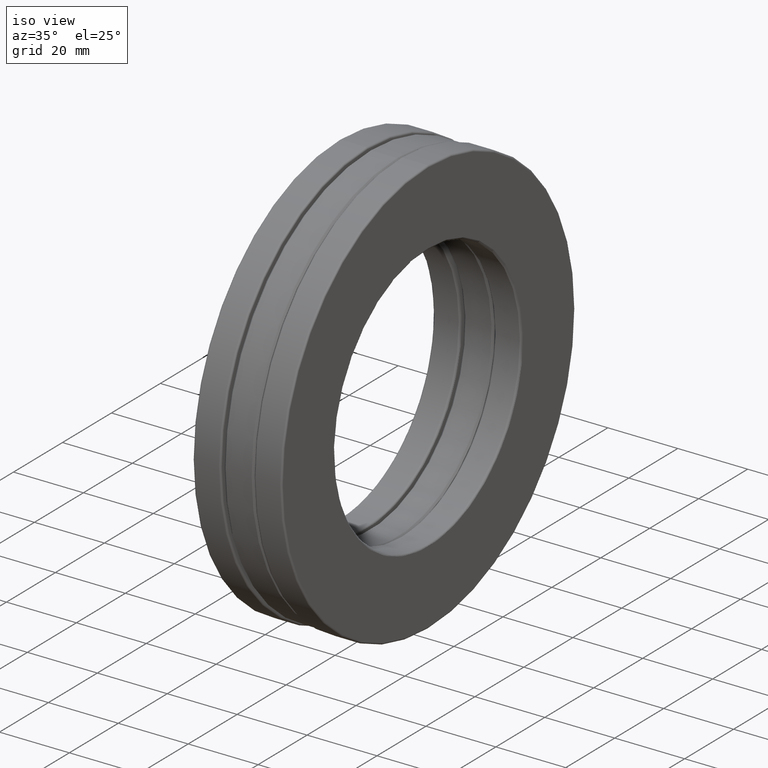
[diagram: clean part render]
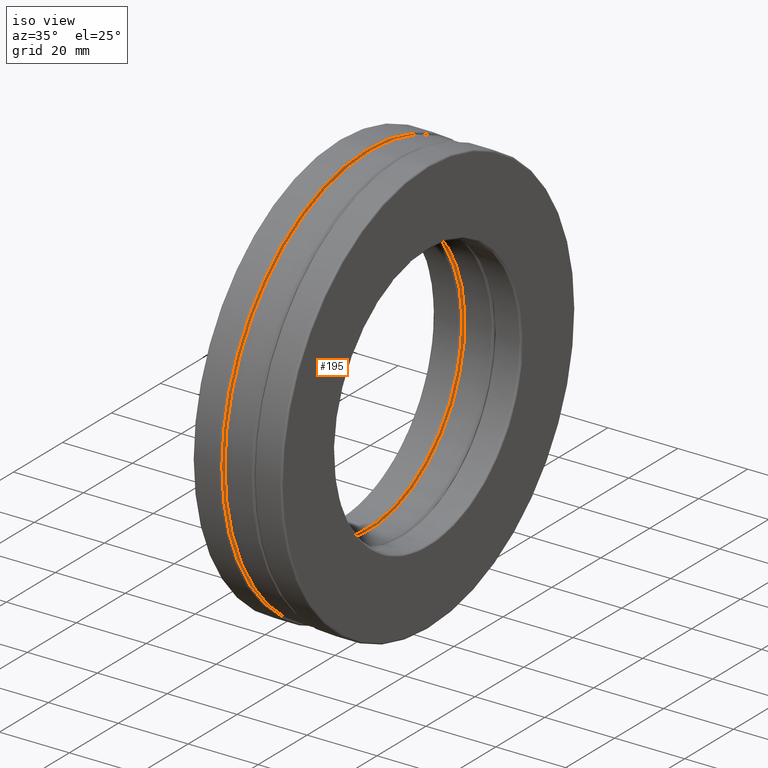
[diagram: same view with one face highlighted and labeled with its STEP entity id]
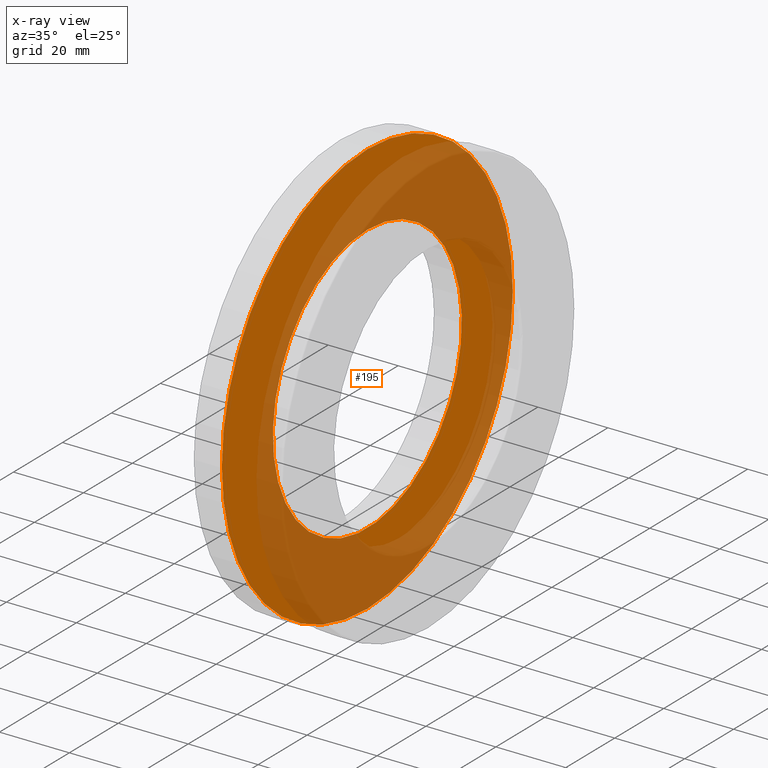
[diagram: x-ray of the same camera — body ghosted, the highlighted face saturated]
A machine part, iso view. The second image highlights one B-rep face of the part: STEP entity #195.
The next image is the same camera in x-ray: the body ghosted, the highlighted face saturated — about 54% of this face is hidden behind the body in this view.
In plain terms, the highlighted planar face has unit normal (1, 0, 0).
Its self-contained STEP definition (entity closure, byte-faithful):
#3 = FACE_BOUND ( 'NONE', #1056, .T. ) ;
#25 = AXIS2_PLACEMENT_3D ( 'NONE', #1061, #78, #726 ) ;
#78 = DIRECTION ( 'NONE',  ( -1.000000000000000000, -0.0000000000000000000, -0.0000000000000000000 ) ) ;
#128 = AXIS2_PLACEMENT_3D ( 'NONE', #280, #1195, #511 ) ;
#195 = ADVANCED_FACE ( 'NONE', ( #3, #1182 ), #547, .T. ) ;
#280 = CARTESIAN_POINT ( 'NONE',  ( -0.1874999999999998900, 0.0000000000000000000, 0.0000000000000000000 ) ) ;
#439 = VERTEX_POINT ( 'NONE', #721 ) ;
#450 = EDGE_CURVE ( 'NONE', #439, #439, #690, .T. ) ;
#473 = EDGE_CURVE ( 'NONE', #1039, #1039, #1031, .T. ) ;
#511 = DIRECTION ( 'NONE',  ( 0.0000000000000000000, 0.0000000000000000000, 1.000000000000000000 ) ) ;
#547 = PLANE ( 'NONE',  #1147 ) ;
#604 = ORIENTED_EDGE ( 'NONE', *, *, #473, .T. ) ;
#606 = CARTESIAN_POINT ( 'NONE',  ( -0.1874999999999998900, 0.0000000000000000000, 1.520000000000000200 ) ) ;
#663 = DIRECTION ( 'NONE',  ( 0.0000000000000000000, 0.0000000000000000000, -1.000000000000000000 ) ) ;
#690 = CIRCLE ( 'NONE', #128, 2.339375000000000400 ) ;
#721 = CARTESIAN_POINT ( 'NONE',  ( -0.1874999999999998900, 0.0000000000000000000, 2.339375000000000400 ) ) ;
#726 = DIRECTION ( 'NONE',  ( 0.0000000000000000000, 0.0000000000000000000, 1.000000000000000000 ) ) ;
#784 = EDGE_LOOP ( 'NONE', ( #828 ) ) ;
#828 = ORIENTED_EDGE ( 'NONE', *, *, #450, .F. ) ;
#1031 = CIRCLE ( 'NONE', #25, 1.520000000000000200 ) ;
#1039 = VERTEX_POINT ( 'NONE', #606 ) ;
#1056 = EDGE_LOOP ( 'NONE', ( #604 ) ) ;
#1061 = CARTESIAN_POINT ( 'NONE',  ( -0.1874999999999998900, 0.0000000000000000000, 0.0000000000000000000 ) ) ;
#1130 = DIRECTION ( 'NONE',  ( 1.000000000000000000, 0.0000000000000000000, 0.0000000000000000000 ) ) ;
#1147 = AXIS2_PLACEMENT_3D ( 'NONE', #1339, #1130, #663 ) ;
#1182 = FACE_OUTER_BOUND ( 'NONE', #784, .T. ) ;
#1195 = DIRECTION ( 'NONE',  ( -1.000000000000000000, -0.0000000000000000000, -0.0000000000000000000 ) ) ;
#1339 = CARTESIAN_POINT ( 'NONE',  ( -0.1874999999999998900, 0.0000000000000000000, 0.0000000000000000000 ) ) ;